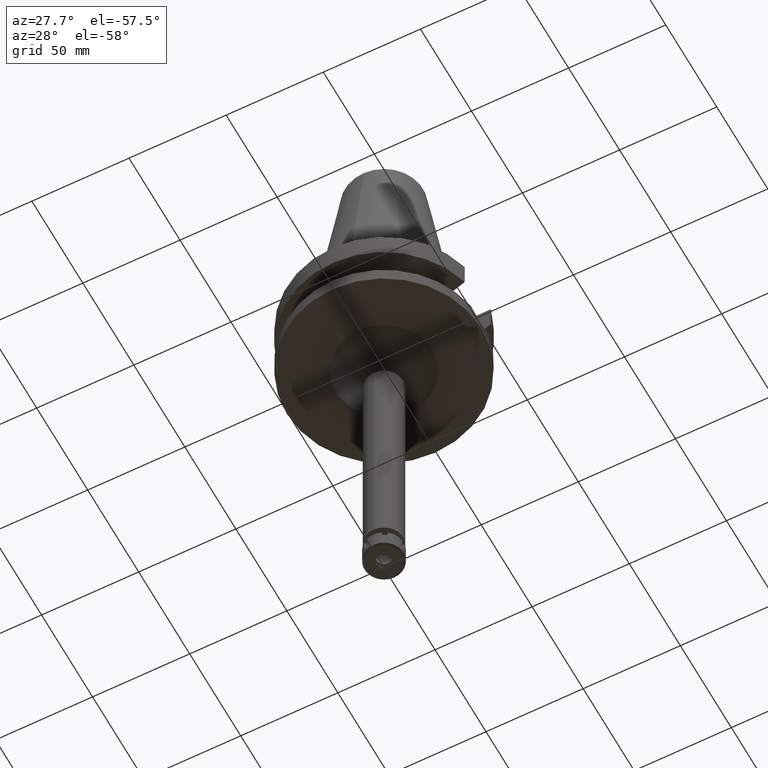
[diagram: clean part render]
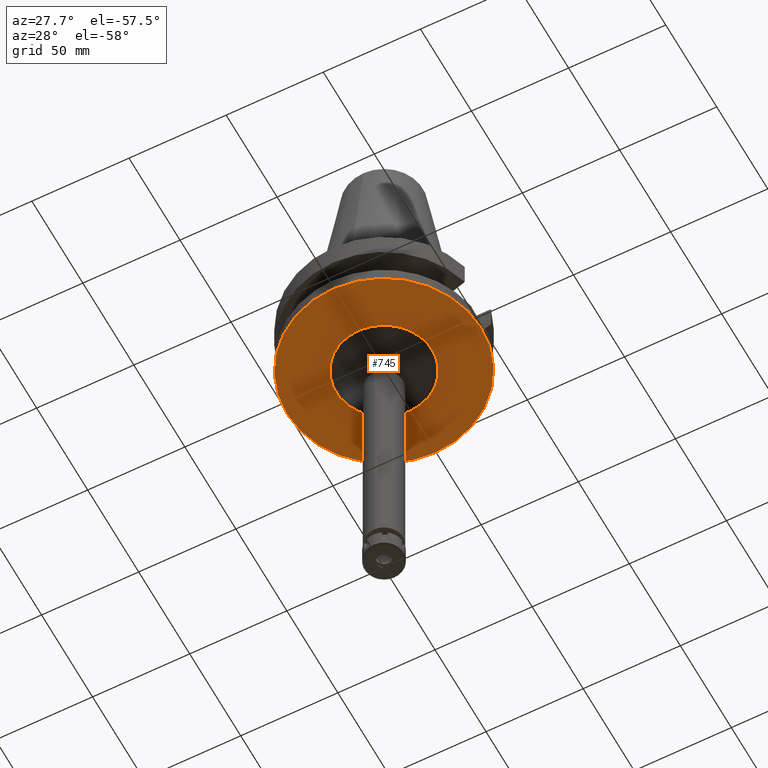
[diagram: same view with one face highlighted and labeled with its STEP entity id]
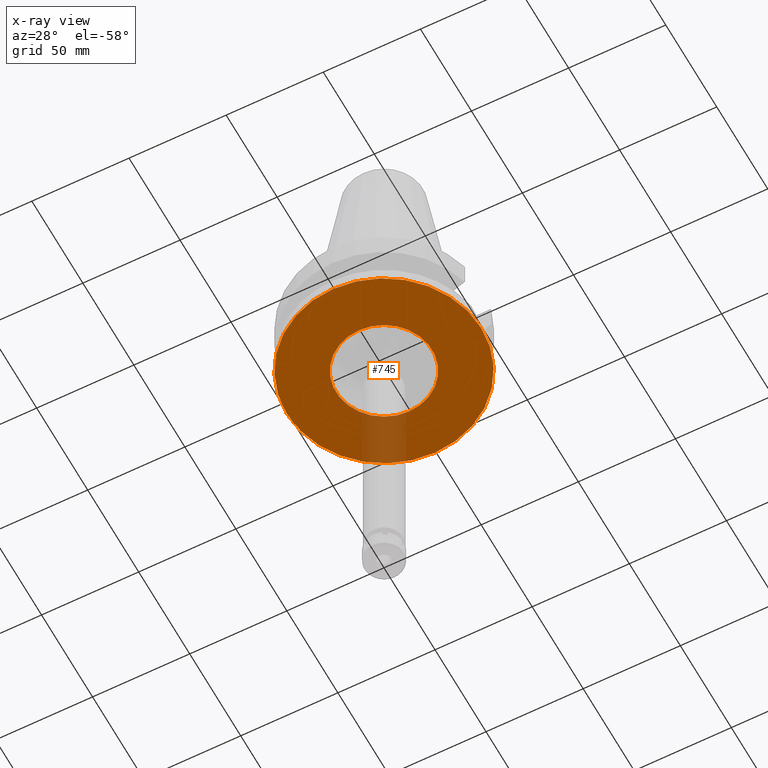
[diagram: x-ray of the same camera — body ghosted, the highlighted face saturated]
A machine part, auxiliary view. The second image highlights one B-rep face of the part: STEP entity #745.
The next image is the same camera in x-ray: the body ghosted, the highlighted face saturated — about 8% of this face is hidden behind the body in this view.
In plain terms, the highlighted planar face has unit normal (0, 0, -1).
Its self-contained STEP definition (entity closure, byte-faithful):
#48 = VERTEX_POINT ( 'NONE', #2982 ) ;
#91 = CIRCLE ( 'NONE', #1159, 24.75000000000000000 ) ;
#116 = EDGE_LOOP ( 'NONE', ( #620, #2858 ) ) ;
#153 = CIRCLE ( 'NONE', #3302, 50.00000000000000000 ) ;
#160 = DIRECTION ( 'NONE',  ( 0.0000000000000000000, 0.0000000000000000000, -1.000000000000000000 ) ) ;
#273 = DIRECTION ( 'NONE',  ( 0.0000000000000000000, -1.000000000000000000, 0.0000000000000000000 ) ) ;
#620 = ORIENTED_EDGE ( 'NONE', *, *, #1045, .F. ) ;
#639 = CARTESIAN_POINT ( 'NONE',  ( 0.0000000000000000000, 2.653074825673000053E-14, -38.00000000000000000 ) ) ;
#734 = DIRECTION ( 'NONE',  ( 0.0000000000000000000, 1.000000000000000000, 0.0000000000000000000 ) ) ;
#745 = ADVANCED_FACE ( 'NONE', ( #1394, #1941 ), #1962, .T. ) ;
#833 = CARTESIAN_POINT ( 'NONE',  ( 0.0000000000000000000, 0.0000000000000000000, -38.00000000000000000 ) ) ;
#881 = AXIS2_PLACEMENT_3D ( 'NONE', #2976, #160, #734 ) ;
#976 = ORIENTED_EDGE ( 'NONE', *, *, #2663, .F. ) ;
#1045 = EDGE_CURVE ( 'NONE', #48, #3072, #1060, .T. ) ;
#1060 = CIRCLE ( 'NONE', #881, 24.75000000000000000 ) ;
#1106 = AXIS2_PLACEMENT_3D ( 'NONE', #1108, #3092, #273 ) ;
#1108 = CARTESIAN_POINT ( 'NONE',  ( 0.0000000000000000000, 0.0000000000000000000, -38.00000000000000000 ) ) ;
#1156 = DIRECTION ( 'NONE',  ( 0.0000000000000000000, -1.000000000000000000, 0.0000000000000000000 ) ) ;
#1159 = AXIS2_PLACEMENT_3D ( 'NONE', #833, #1975, #2825 ) ;
#1394 = FACE_OUTER_BOUND ( 'NONE', #2179, .T. ) ;
#1487 = DIRECTION ( 'NONE',  ( 0.0000000000000000000, 0.0000000000000000000, 1.000000000000000000 ) ) ;
#1560 = CARTESIAN_POINT ( 'NONE',  ( 0.0000000000000000000, 50.00000000000000000, -38.00000000000000000 ) ) ;
#1941 = FACE_BOUND ( 'NONE', #116, .T. ) ;
#1948 = CIRCLE ( 'NONE', #3423, 50.00000000000000000 ) ;
#1962 = PLANE ( 'NONE',  #1106 ) ;
#1975 = DIRECTION ( 'NONE',  ( 0.0000000000000000000, 0.0000000000000000000, -1.000000000000000000 ) ) ;
#2179 = EDGE_LOOP ( 'NONE', ( #976, #3675 ) ) ;
#2206 = CARTESIAN_POINT ( 'NONE',  ( 0.0000000000000000000, -24.75000000000000000, -38.00000000000000000 ) ) ;
#2300 = EDGE_CURVE ( 'NONE', #3072, #48, #91, .T. ) ;
#2345 = EDGE_CURVE ( 'NONE', #3035, #2612, #153, .T. ) ;
#2379 = DIRECTION ( 'NONE',  ( 0.0000000000000000000, 0.0000000000000000000, 1.000000000000000000 ) ) ;
#2612 = VERTEX_POINT ( 'NONE', #1560 ) ;
#2663 = EDGE_CURVE ( 'NONE', #2612, #3035, #1948, .T. ) ;
#2693 = CARTESIAN_POINT ( 'NONE',  ( 0.0000000000000000000, 2.653074825673000053E-14, -38.00000000000000000 ) ) ;
#2749 = CARTESIAN_POINT ( 'NONE',  ( 0.0000000000000000000, -50.00000000000000000, -38.00000000000000000 ) ) ;
#2825 = DIRECTION ( 'NONE',  ( 0.0000000000000000000, -1.000000000000000000, 0.0000000000000000000 ) ) ;
#2858 = ORIENTED_EDGE ( 'NONE', *, *, #2300, .F. ) ;
#2976 = CARTESIAN_POINT ( 'NONE',  ( 0.0000000000000000000, 0.0000000000000000000, -38.00000000000000000 ) ) ;
#2982 = CARTESIAN_POINT ( 'NONE',  ( 0.0000000000000000000, 24.75000000000000000, -38.00000000000000000 ) ) ;
#3035 = VERTEX_POINT ( 'NONE', #2749 ) ;
#3072 = VERTEX_POINT ( 'NONE', #2206 ) ;
#3092 = DIRECTION ( 'NONE',  ( 0.0000000000000000000, 0.0000000000000000000, -1.000000000000000000 ) ) ;
#3219 = DIRECTION ( 'NONE',  ( 0.0000000000000000000, 1.000000000000000000, 0.0000000000000000000 ) ) ;
#3302 = AXIS2_PLACEMENT_3D ( 'NONE', #639, #1487, #1156 ) ;
#3423 = AXIS2_PLACEMENT_3D ( 'NONE', #2693, #2379, #3219 ) ;
#3675 = ORIENTED_EDGE ( 'NONE', *, *, #2345, .F. ) ;